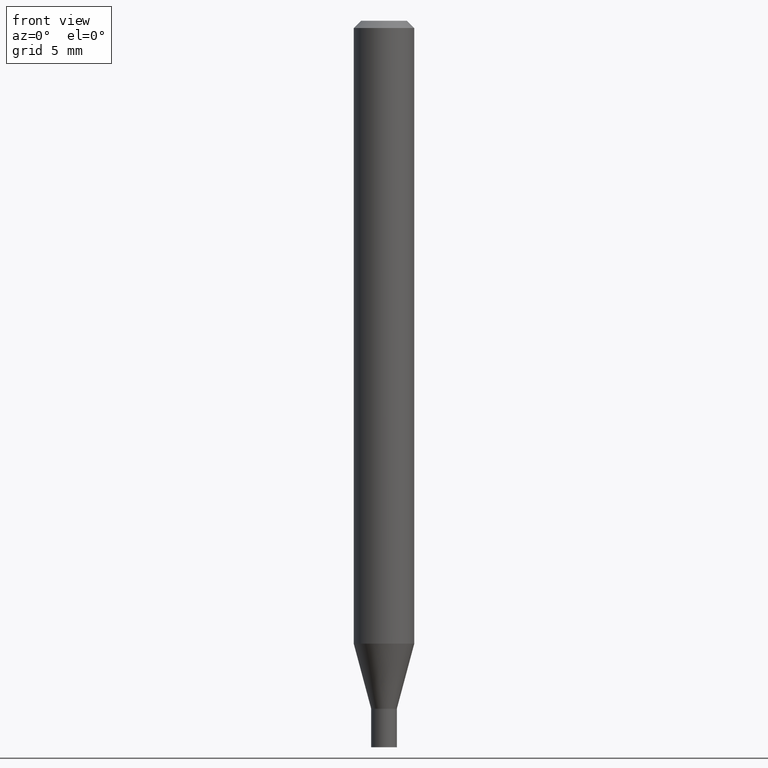
[diagram: clean part render]
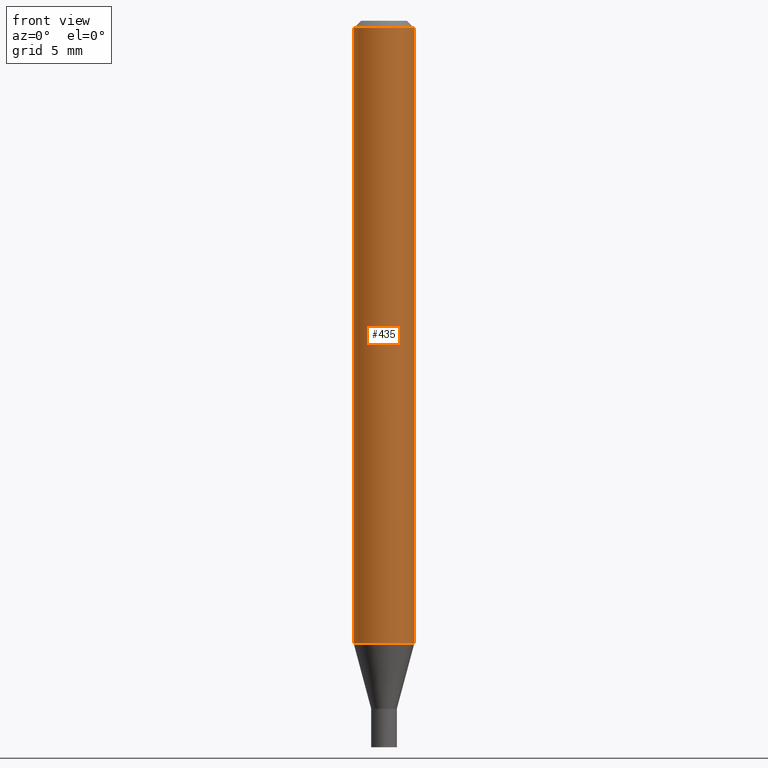
[diagram: same view with one face highlighted and labeled with its STEP entity id]
A machine part, front view. The second image highlights one B-rep face of the part: STEP entity #435.
In plain terms, the highlighted cylindrical surface (edge-blend (fillet) strip) has radius 1.5875 mm, axis along (-0, 0, 1).
Its self-contained STEP definition (entity closure, byte-faithful):
#9 = CARTESIAN_POINT ( 'NONE',  ( 0.000000000000000000, 0.000000000000000000, 0.000000000000000000 ) ) ;
#35 = CARTESIAN_POINT ( 'NONE',  ( 0.06250000000000000000, -4.364351673553916694E-16, 3.047610484872459871E-30 ) ) ;
#45 = CYLINDRICAL_SURFACE ( 'NONE', #111, 0.06250000000000000000 ) ;
#50 = EDGE_CURVE ( 'NONE', #226, #172, #393, .T. ) ;
#65 = ORIENTED_EDGE ( 'NONE', *, *, #147, .T. ) ;
#67 = DIRECTION ( 'NONE',  ( 1.000000000000000000, -6.982962677686262766E-15, 0.000000000000000000 ) ) ;
#99 = CARTESIAN_POINT ( 'NONE',  ( 3.145230341197711015E-29, -4.490555354818009189E-15, -1.286146170927521704 ) ) ;
#102 = AXIS2_PLACEMENT_3D ( 'NONE', #188, #321, #438 ) ;
#111 = AXIS2_PLACEMENT_3D ( 'NONE', #9, #149, #291 ) ;
#121 = FACE_OUTER_BOUND ( 'NONE', #397, .T. ) ;
#142 = VECTOR ( 'NONE', #242, 39.37007874015748143 ) ;
#145 = CARTESIAN_POINT ( 'NONE',  ( -0.06250000000000000000, -4.046466144967945784E-15, -1.286146170927521704 ) ) ;
#147 = EDGE_CURVE ( 'NONE', #311, #167, #202, .T. ) ;
#149 = DIRECTION ( 'NONE',  ( -2.445468806185136597E-29, 3.491481338843145583E-15, 1.000000000000000000 ) ) ;
#166 = LINE ( 'NONE', #426, #142 ) ;
#167 = VERTEX_POINT ( 'NONE', #203 ) ;
#168 = ORIENTED_EDGE ( 'NONE', *, *, #178, .T. ) ;
#170 = CARTESIAN_POINT ( 'NONE',  ( 0.06250000000000000000, -4.888073874380388472E-16, -0.01499999999999999944 ) ) ;
#172 = VERTEX_POINT ( 'NONE', #170 ) ;
#178 = EDGE_CURVE ( 'NONE', #167, #172, #211, .T. ) ;
#188 = CARTESIAN_POINT ( 'NONE',  ( 3.668203209277705088E-31, -5.237222008264718399E-17, -0.01499999999999999944 ) ) ;
#195 = EDGE_CURVE ( 'NONE', #311, #226, #166, .T. ) ;
#202 = CIRCLE ( 'NONE', #298, 0.06250000000000000000 ) ;
#203 = CARTESIAN_POINT ( 'NONE',  ( 0.06250000000000000000, -4.926990522173400069E-15, -1.286146170927521704 ) ) ;
#211 = LINE ( 'NONE', #35, #277 ) ;
#226 = VERTEX_POINT ( 'NONE', #359 ) ;
#242 = DIRECTION ( 'NONE',  ( -2.445468806185136877E-29, 3.491481338843145188E-15, 1.000000000000000000 ) ) ;
#277 = VECTOR ( 'NONE', #465, 39.37007874015748143 ) ;
#291 = DIRECTION ( 'NONE',  ( 1.000000000000000000, -6.982962677686266711E-15, 4.876176775795935793E-29 ) ) ;
#298 = AXIS2_PLACEMENT_3D ( 'NONE', #99, #315, #67 ) ;
#311 = VERTEX_POINT ( 'NONE', #145 ) ;
#315 = DIRECTION ( 'NONE',  ( -2.445468806185136597E-29, 3.491481338843145583E-15, 1.000000000000000000 ) ) ;
#321 = DIRECTION ( 'NONE',  ( -2.445468806185136597E-29, 3.491481338843145583E-15, 1.000000000000000000 ) ) ;
#359 = CARTESIAN_POINT ( 'NONE',  ( -0.06250000000000000000, -1.827374577600265321E-15, -0.01499999999999999944 ) ) ;
#389 = ORIENTED_EDGE ( 'NONE', *, *, #50, .F. ) ;
#393 = CIRCLE ( 'NONE', #102, 0.06250000000000000000 ) ;
#397 = EDGE_LOOP ( 'NONE', ( #436, #65, #168, #389 ) ) ;
#426 = CARTESIAN_POINT ( 'NONE',  ( -0.06250000000000000000, 4.440892098500626162E-16, -3.074334431409316114E-30 ) ) ;
#435 = ADVANCED_FACE ( 'NONE', ( #121 ), #45, .T. ) ;
#436 = ORIENTED_EDGE ( 'NONE', *, *, #195, .F. ) ;
#438 = DIRECTION ( 'NONE',  ( 1.000000000000000000, -6.982962677686266711E-15, 0.000000000000000000 ) ) ;
#465 = DIRECTION ( 'NONE',  ( -2.445468806185136877E-29, 3.491481338843145188E-15, 1.000000000000000000 ) ) ;